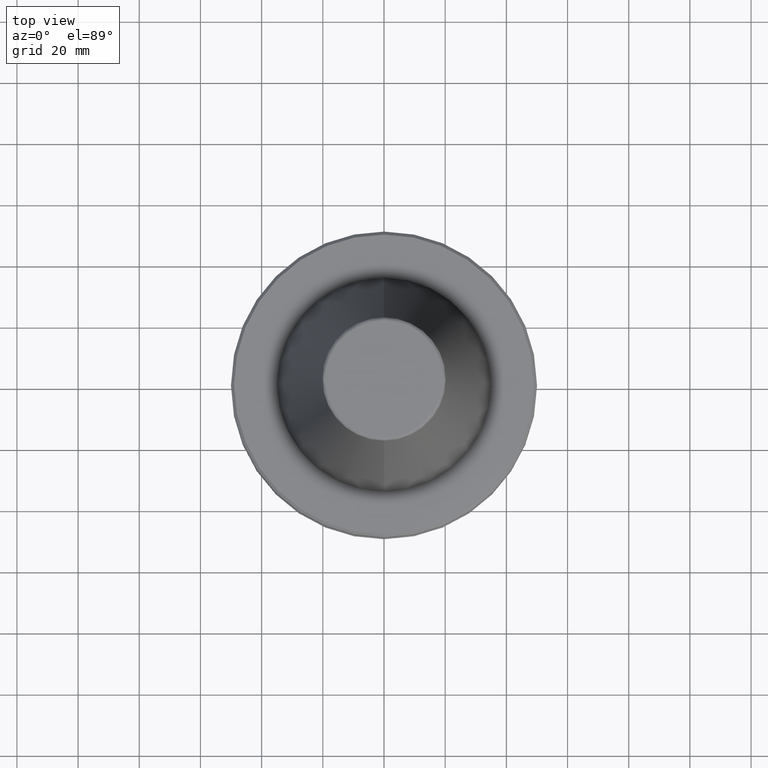
[diagram: clean part render]
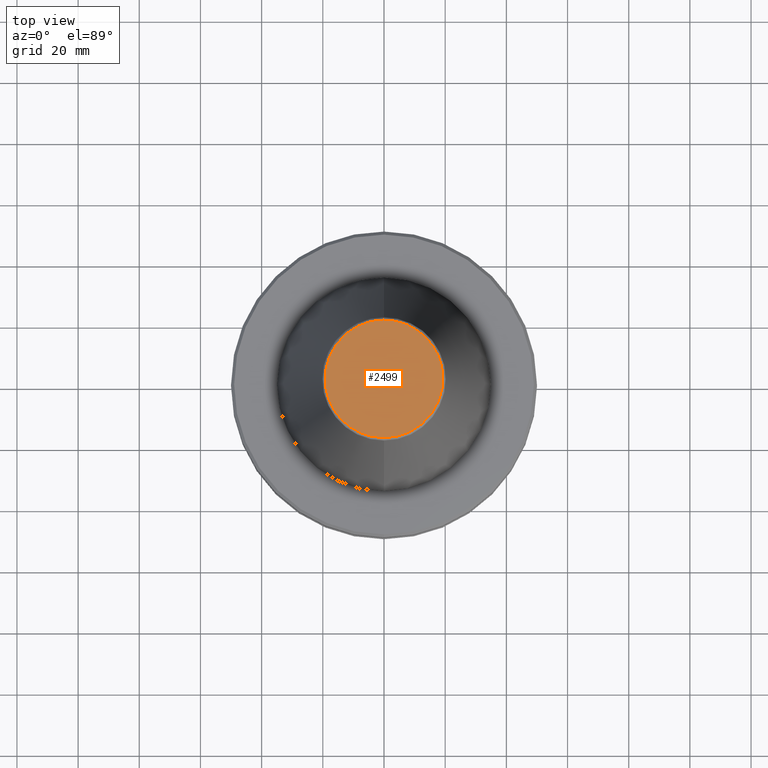
[diagram: same view with one face highlighted and labeled with its STEP entity id]
A machine part, top view. The second image highlights one B-rep face of the part: STEP entity #2499.
In plain terms, the highlighted planar face has unit normal (0, 0, -1).
Its self-contained STEP definition (entity closure, byte-faithful):
#92 =( BOUNDED_CURVE ( )  B_SPLINE_CURVE ( 3, ( #2026, #2470, #2239, #2328 ),
 .UNSPECIFIED., .F., .F. ) 
 B_SPLINE_CURVE_WITH_KNOTS ( ( 4, 4 ),
 ( 0.0000000000000000000, 1.000000000000000000 ),
 .UNSPECIFIED. ) 
 CURVE ( )  GEOMETRIC_REPRESENTATION_ITEM ( )  RATIONAL_B_SPLINE_CURVE ( ( 1.000000000000000000, 0.3333333333333333700, 0.3333333333333333700, 1.000000000000000000 ) ) 
 REPRESENTATION_ITEM ( '' )  );
#116 = EDGE_CURVE ( 'NONE', #1575, #1492, #92, .T. ) ;
#406 =( BOUNDED_CURVE ( )  B_SPLINE_CURVE ( 3, ( #2415, #2428, #2407, #2396 ),
 .UNSPECIFIED., .F., .F. ) 
 B_SPLINE_CURVE_WITH_KNOTS ( ( 4, 4 ),
 ( 0.0000000000000000000, 1.000000000000000000 ),
 .UNSPECIFIED. ) 
 CURVE ( )  GEOMETRIC_REPRESENTATION_ITEM ( )  RATIONAL_B_SPLINE_CURVE ( ( 1.000000000000000000, 0.3333333333333333700, 0.3333333333333333700, 1.000000000000000000 ) ) 
 REPRESENTATION_ITEM ( '' )  );
#647 = ORIENTED_EDGE ( 'NONE', *, *, #2322, .F. ) ;
#808 = CARTESIAN_POINT ( 'NONE',  ( 19.21428326503027500, 0.0000000000000000000, 101.8000000000000000 ) ) ;
#855 = CARTESIAN_POINT ( 'NONE',  ( -19.21428326503027500, 2.377307613035567900E-015, 101.8000000000000000 ) ) ;
#1151 = EDGE_LOOP ( 'NONE', ( #1972, #647 ) ) ;
#1492 = VERTEX_POINT ( 'NONE', #855 ) ;
#1543 = FACE_OUTER_BOUND ( 'NONE', #1151, .T. ) ;
#1575 = VERTEX_POINT ( 'NONE', #808 ) ;
#1735 = AXIS2_PLACEMENT_3D ( 'NONE', #1922, #1903, #1900 ) ;
#1900 = DIRECTION ( 'NONE',  ( -1.000000000000000000, 0.0000000000000000000, -0.0000000000000000000 ) ) ;
#1903 = DIRECTION ( 'NONE',  ( 0.0000000000000000000, 0.0000000000000000000, -1.000000000000000000 ) ) ;
#1906 = PLANE ( 'NONE',  #1735 ) ;
#1922 = CARTESIAN_POINT ( 'NONE',  ( 0.0000000000000000000, 0.0000000000000000000, 101.8000000000000000 ) ) ;
#1972 = ORIENTED_EDGE ( 'NONE', *, *, #116, .F. ) ;
#2026 = CARTESIAN_POINT ( 'NONE',  ( 19.21428326503027500, 0.0000000000000000000, 101.8000000000000000 ) ) ;
#2239 = CARTESIAN_POINT ( 'NONE',  ( -19.21428326503027900, -38.42856653006053600, 101.8000000000000000 ) ) ;
#2322 = EDGE_CURVE ( 'NONE', #1492, #1575, #406, .T. ) ;
#2328 = CARTESIAN_POINT ( 'NONE',  ( -19.21428326503027500, 2.377307613035567900E-015, 101.8000000000000000 ) ) ;
#2396 = CARTESIAN_POINT ( 'NONE',  ( 19.21428326503027500, 0.0000000000000000000, 101.8000000000000000 ) ) ;
#2407 = CARTESIAN_POINT ( 'NONE',  ( 19.21428326503027500, 38.42856653006053600, 101.8000000000000000 ) ) ;
#2415 = CARTESIAN_POINT ( 'NONE',  ( -19.21428326503027500, 2.377307613035567900E-015, 101.8000000000000000 ) ) ;
#2428 = CARTESIAN_POINT ( 'NONE',  ( -19.21428326503026800, 38.42856653006053600, 101.8000000000000000 ) ) ;
#2470 = CARTESIAN_POINT ( 'NONE',  ( 19.21428326503027500, -38.42856653006053600, 101.8000000000000000 ) ) ;
#2499 = ADVANCED_FACE ( 'NONE', ( #1543 ), #1906, .F. ) ;